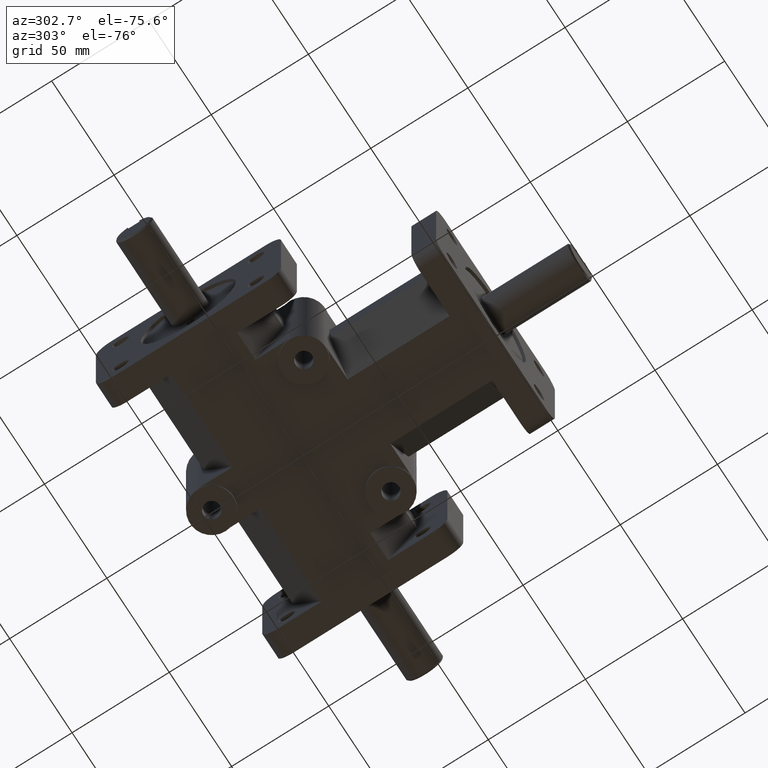
[diagram: clean part render]
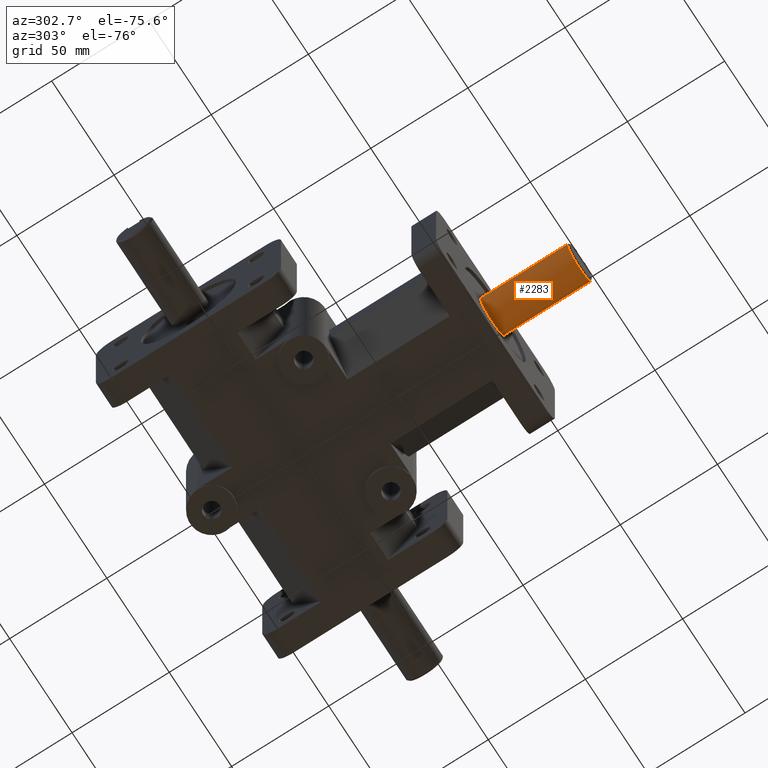
[diagram: same view with one face highlighted and labeled with its STEP entity id]
A machine part, auxiliary view. The second image highlights one B-rep face of the part: STEP entity #2283.
In plain terms, the highlighted cylindrical surface (bore or boss wall) has radius 9.5 mm, axis along (0, -1, 0).
Its self-contained STEP definition (entity closure, byte-faithful):
#164=FACE_OUTER_BOUND('',#293,.T.);
#293=EDGE_LOOP('',(#1622,#1623,#1624,#1625,#1626,#1627,#1628,#1629));
#466=LINE('',#3404,#688);
#470=LINE('',#3417,#692);
#476=LINE('',#3436,#698);
#688=VECTOR('',#2707,1.);
#692=VECTOR('',#2713,1.);
#698=VECTOR('',#2729,9.5);
#907=CIRCLE('',#2437,9.5);
#908=CIRCLE('',#2439,9.5);
#909=CIRCLE('',#2440,9.5);
#910=CIRCLE('',#2441,9.5);
#1020=VERTEX_POINT('',#3402);
#1021=VERTEX_POINT('',#3403);
#1025=VERTEX_POINT('',#3415);
#1026=VERTEX_POINT('',#3416);
#1030=VERTEX_POINT('',#3433);
#1031=VERTEX_POINT('',#3435);
#1250=EDGE_CURVE('',#1020,#1021,#466,.T.);
#1255=EDGE_CURVE('',#1025,#1026,#470,.T.);
#1262=EDGE_CURVE('',#1026,#1020,#907,.T.);
#1263=EDGE_CURVE('',#1030,#1021,#908,.T.);
#1264=EDGE_CURVE('',#1030,#1031,#476,.T.);
#1265=EDGE_CURVE('',#1031,#1031,#909,.T.);
#1266=EDGE_CURVE('',#1025,#1030,#910,.T.);
#1622=ORIENTED_EDGE('',*,*,#1250,.T.);
#1623=ORIENTED_EDGE('',*,*,#1263,.F.);
#1624=ORIENTED_EDGE('',*,*,#1264,.T.);
#1625=ORIENTED_EDGE('',*,*,#1265,.F.);
#1626=ORIENTED_EDGE('',*,*,#1264,.F.);
#1627=ORIENTED_EDGE('',*,*,#1266,.F.);
#1628=ORIENTED_EDGE('',*,*,#1255,.T.);
#1629=ORIENTED_EDGE('',*,*,#1262,.T.);
#2229=CYLINDRICAL_SURFACE('',#2438,9.5);
#2283=ADVANCED_FACE('',(#164),#2229,.T.);
#2437=AXIS2_PLACEMENT_3D('',#3431,#2723,#2724);
#2438=AXIS2_PLACEMENT_3D('',#3432,#2725,#2726);
#2439=AXIS2_PLACEMENT_3D('',#3434,#2727,#2728);
#2440=AXIS2_PLACEMENT_3D('',#3437,#2730,#2731);
#2441=AXIS2_PLACEMENT_3D('',#3438,#2732,#2733);
#2707=DIRECTION('',(0.,-1.,0.));
#2713=DIRECTION('',(0.,1.,0.));
#2723=DIRECTION('center_axis',(0.,1.,0.));
#2724=DIRECTION('ref_axis',(1.,0.,0.));
#2725=DIRECTION('center_axis',(0.,-1.,0.));
#2726=DIRECTION('ref_axis',(1.,0.,0.));
#2727=DIRECTION('center_axis',(0.,-1.,0.));
#2728=DIRECTION('ref_axis',(-1.,0.,0.));
#2729=DIRECTION('',(0.,1.,0.));
#2730=DIRECTION('center_axis',(0.,1.,0.));
#2731=DIRECTION('ref_axis',(1.,0.,0.));
#2732=DIRECTION('center_axis',(0.,-1.,0.));
#2733=DIRECTION('ref_axis',(-1.,0.,0.));
#3402=CARTESIAN_POINT('',(3.,-5.9,9.01387818865997));
#3403=CARTESIAN_POINT('',(3.,-43.238,9.01387818865997));
#3404=CARTESIAN_POINT('',(3.,-21.238,9.01387818865997));
#3415=CARTESIAN_POINT('',(-3.,-43.238,9.01387818865997));
#3416=CARTESIAN_POINT('',(-3.,-5.9,9.01387818865997));
#3417=CARTESIAN_POINT('',(-3.,-21.238,9.01387818865997));
#3431=CARTESIAN_POINT('Origin',(0.,-5.9,0.));
#3432=CARTESIAN_POINT('Origin',(0.,-21.238,0.));
#3433=CARTESIAN_POINT('',(-9.5,-43.238,-1.16341445918999E-15));
#3434=CARTESIAN_POINT('Origin',(0.,-43.238,0.));
#3435=CARTESIAN_POINT('',(-9.5,1.524,-1.16341445918999E-15));
#3436=CARTESIAN_POINT('',(-9.5,-21.238,-1.16341445918999E-15));
#3437=CARTESIAN_POINT('Origin',(0.,1.524,0.));
#3438=CARTESIAN_POINT('Origin',(0.,-43.238,0.));